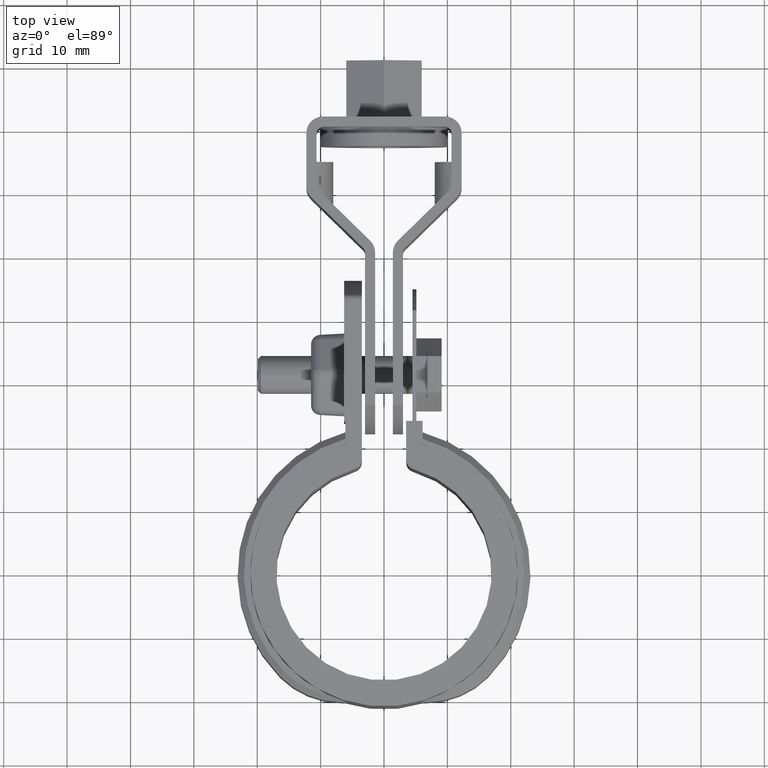
[diagram: clean part render]
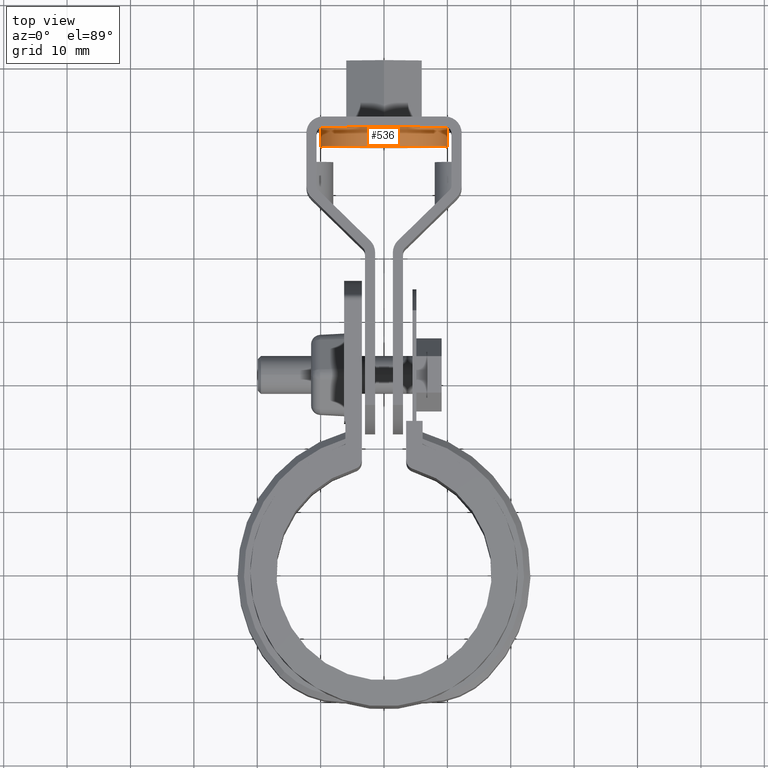
[diagram: same view with one face highlighted and labeled with its STEP entity id]
A machine part, top view. The second image highlights one B-rep face of the part: STEP entity #536.
In plain terms, the highlighted cylindrical surface (bore or boss wall) has radius 10 mm, axis along (-0, -1, -0).
Its self-contained STEP definition (entity closure, byte-faithful):
#536 = ADVANCED_FACE( '', ( #1061, #1062 ), #1063, .T. );
#1061 = FACE_OUTER_BOUND( '', #2154, .T. );
#1062 = FACE_OUTER_BOUND( '', #2155, .T. );
#1063 = CYLINDRICAL_SURFACE( '', #2156, 10.0000000000000 );
#2154 = EDGE_LOOP( '', ( #4819 ) );
#2155 = EDGE_LOOP( '', ( #4820 ) );
#2156 = AXIS2_PLACEMENT_3D( '', #4821, #4822, #4823 );
#4819 = ORIENTED_EDGE( '', *, *, #6623, .T. );
#4820 = ORIENTED_EDGE( '', *, *, #6612, .F. );
#4821 = CARTESIAN_POINT( '', ( 8.97010399529328E-007, 67.4043599992195, -12.4999977343387 ) );
#4822 = DIRECTION( '', ( -6.88262000006329E-009, -1.00000000000000, -1.66499459745878E-008 ) );
#4823 = DIRECTION( '', ( 1.00000000000000, -6.88261999302233E-009, -4.22881875284543E-010 ) );
#6612 = EDGE_CURVE( '', #7865, #7865, #7866, .T. );
#6623 = EDGE_CURVE( '', #7884, #7884, #7885, .T. );
#7865 = VERTEX_POINT( '', #11213 );
#7866 = CIRCLE( '', #11214, 10.0000000000000 );
#7884 = VERTEX_POINT( '', #11241 );
#7885 = CIRCLE( '', #11242, 10.0000000000000 );
#11213 = CARTESIAN_POINT( '', ( 10.0000009176583, 70.4043599303933, -12.4999976886177 ) );
#11214 = AXIS2_PLACEMENT_3D( '', #12969, #12970, #12971 );
#11241 = CARTESIAN_POINT( '', ( 10.0000008970104, 67.4043599303933, -12.4999977385675 ) );
#11242 = AXIS2_PLACEMENT_3D( '', #12984, #12985, #12986 );
#12969 = CARTESIAN_POINT( '', ( 9.17658259529518E-007, 70.4043599992195, -12.4999976843888 ) );
#12970 = DIRECTION( '', ( 6.88262000006329E-009, 1.00000000000000, 1.66499459745878E-008 ) );
#12971 = DIRECTION( '', ( 1.00000000000000, -6.88261999302233E-009, -4.22881875284543E-010 ) );
#12984 = CARTESIAN_POINT( '', ( 8.97010399529328E-007, 67.4043599992195, -12.4999977343387 ) );
#12985 = DIRECTION( '', ( 6.88262000006329E-009, 1.00000000000000, 1.66499459745878E-008 ) );
#12986 = DIRECTION( '', ( 1.00000000000000, -6.88261999302233E-009, -4.22881875284543E-010 ) );